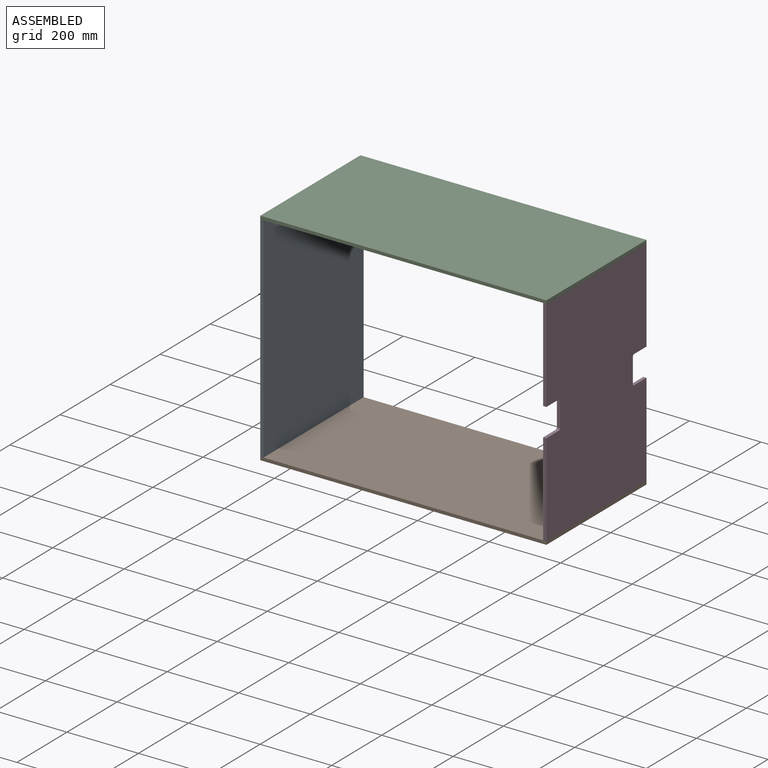
[diagram: assembled view]
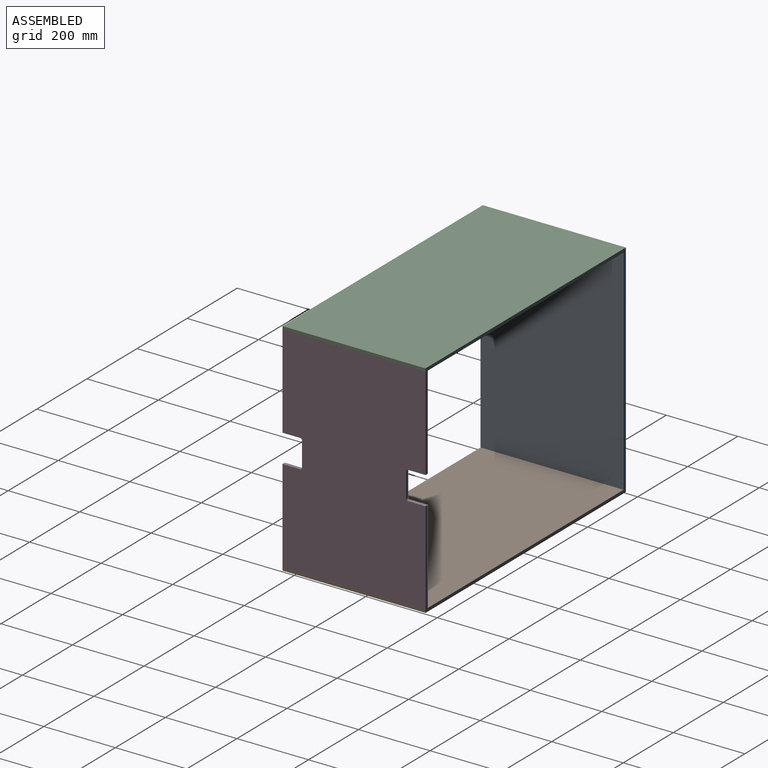
[diagram: assembled view, second angle]
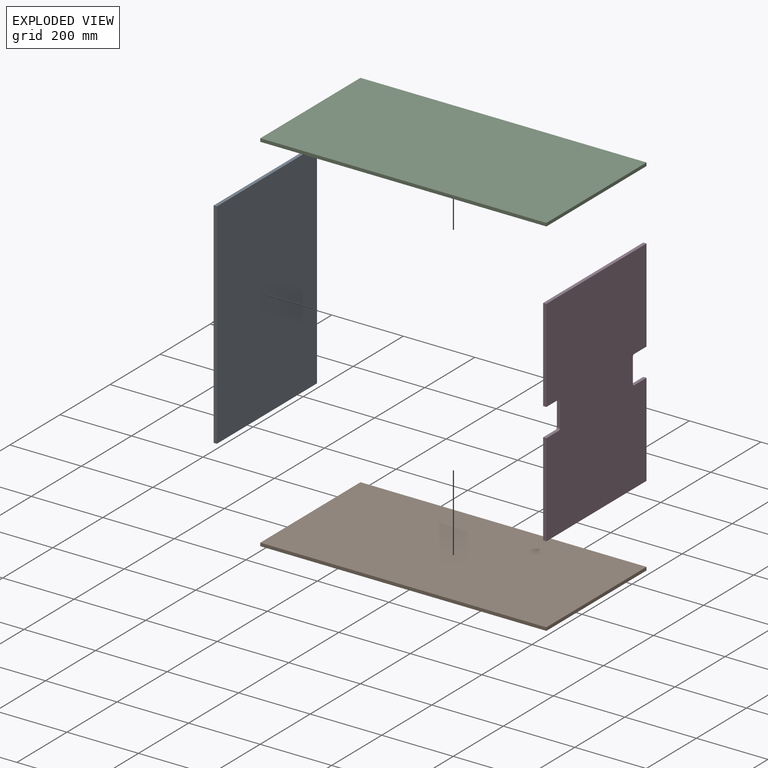
[diagram: exploded view]
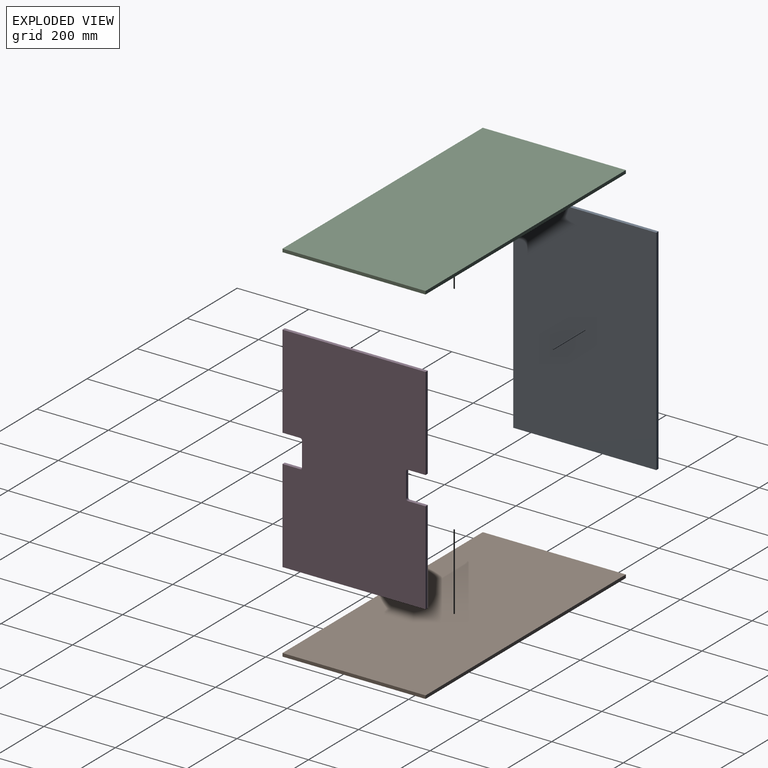
[diagram: exploded view, second angle]
ASSEMBLY  parts=4 mates=9
PART A: 6 faces, bbox 9x400x600 mm
  f0: plane 400x9mm, normal (0,0,-1), area 3600mm2, adj f1,f3,f4,f5
  f1: plane 600x9mm, normal (0,1,0), area 5400mm2, adj f0,f2,f4,f5
  f2: plane 400x9mm, normal (0,0,1), area 3600mm2, adj f1,f3,f4,f5
  f3: plane 600x9mm, normal (0,-1,0), area 5400mm2, adj f0,f2,f4,f5
  f4: plane 600x400mm, normal (1,0,0), area 240000mm2, adj f0,f1,f2,f3
  f5: plane 600x400mm, normal (-1,0,0), area 240000mm2, adj f0,f1,f2,f3
PART B: 6 faces, bbox 800x400x9 mm
  f0: plane 800x9mm, normal (0,-1,0), area 7200mm2, adj f1,f3,f4,f5
  f1: plane 400x9mm, normal (1,0,0), area 3600mm2, adj f0,f2,f4,f5
  f2: plane 800x9mm, normal (0,1,0), area 7200mm2, adj f1,f3,f4,f5
  f3: plane 400x9mm, normal (-1,0,0), area 3600mm2, adj f0,f2,f4,f5
  f4: plane 800x400mm, normal (0,0,1), area 320000mm2, adj f0,f1,f2,f3
  f5: plane 800x400mm, normal (0,0,-1), area 320000mm2, adj f0,f1,f2,f3
PART C: same geometry as B
PART D: 18 faces, bbox 9x400x600 mm
  f0: plane 260.5x9mm, normal (0,1,0), area 2344.5mm2, adj f2,f3,f6,f8
  f1: plane 260.5x9mm, normal (0,-1,0), area 2344.5mm2, adj f2,f3,f6,f12
  f2: plane 600x400mm, normal (1,0,0), area 231410.5mm2, adj f0,f1,f4,f5,f6,f7,f8,f9
  f3: plane 600x400mm, normal (-1,0,0), area 231410.5mm2, adj f0,f1,f4,f5,f6,f7,f8,f9
  f4: plane 400x9mm, normal (0,0,-1), area 3600mm2, adj f2,f3,f5,f7
  f5: plane 260.5x9mm, normal (0,1,0), area 2344.5mm2, adj f2,f3,f4,f10
  f6: plane 400x9mm, normal (0,0,1), area 3600mm2, adj f0,f1,f2,f3
  f7: plane 260.5x9mm, normal (0,-1,0), area 2344.5mm2, adj f2,f3,f4,f13
  f8: plane 49.5x9mm, normal (0,0,-1), area 445.5mm2, adj f0,f2,f3,f14
  f9: plane 69x9mm, normal (0,1,0), area 621mm2, adj f2,f3,f14,f15
  f10: plane 49.5x9mm, normal (0,0,1), area 445.5mm2, adj f2,f3,f5,f15
  f11: plane 69x9mm, normal (0,-1,0), area 621mm2, adj f2,f3,f16,f17
  f12: plane 49.5x9mm, normal (0,0,-1), area 445.5mm2, adj f1,f2,f3,f17
  f13: plane 49.5x9mm, normal (0,0,1), area 445.5mm2, adj f2,f3,f7,f16
  f14: cylinder r=5mm len=9mm, axis (-1,0,0), area 70.7mm2, adj f2,f3,f8,f9
  f15: cylinder r=5mm len=9mm, axis (1,0,0), area 70.7mm2, adj f2,f3,f9,f10
  f16: cylinder r=5mm len=9mm, axis (1,0,0), area 70.7mm2, adj f2,f3,f11,f13
  f17: cylinder r=5mm len=9mm, axis (-1,0,0), area 70.7mm2, adj f2,f3,f11,f12
PLACE A t=(-395.08,50.74,294.58)mm
PLACE B t=(4.92,50.74,-14.42)mm
PLACE C rot(axis=(1,0,0),180deg) t=(4.92,50.74,603.58)mm
PLACE D t=(395.92,50.74,294.58)mm
MATE planar C.f4 <-> D.f6  axis (0,0,-1) through (4.92,50.74,594.58)mm
MATE planar C.f1 <-> D.f2  axis (1,0,0) through (404.92,50.74,599.08)mm
MATE planar A.f3 <-> B.f0  axis (0,-1,0) through (-390.58,-149.26,294.58)mm
MATE planar D.f2 <-> B.f1  axis (1,0,0) through (404.92,50.74,294.58)mm
MATE planar D.f7 <-> B.f0  axis (0,-1,0) through (400.42,-149.26,124.83)mm
MATE planar A.f5 <-> B.f3  axis (-1,0,0) through (-395.08,50.74,294.58)mm
MATE planar B.f4 <-> D.f4  axis (0,0,1) through (4.92,50.74,-5.42)mm
MATE planar A.f0 <-> B.f4  axis (0,0,-1) through (-390.58,50.74,-5.42)mm
MATE planar C.f2 <-> D.f7  axis (0,-1,0) through (4.92,-149.26,599.08)mm
